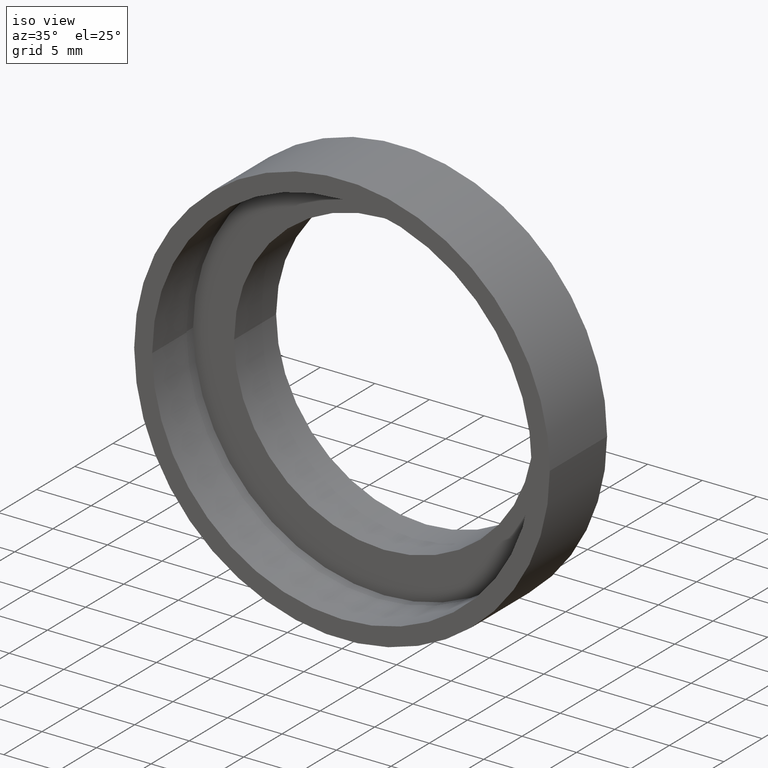
[diagram: clean part render]
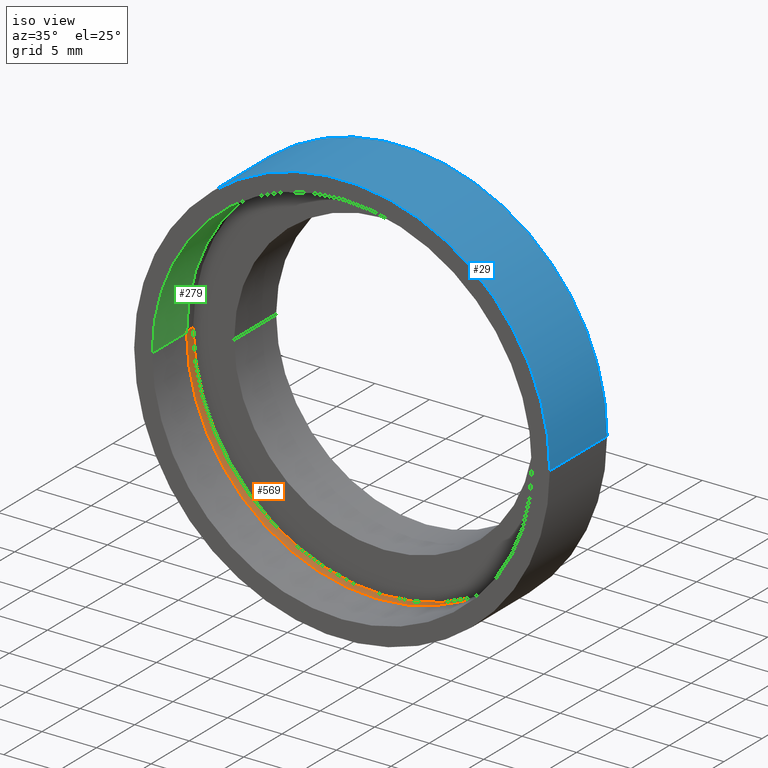
[diagram: same view with three faces highlighted in distinct colors, each labeled with its STEP entity id]
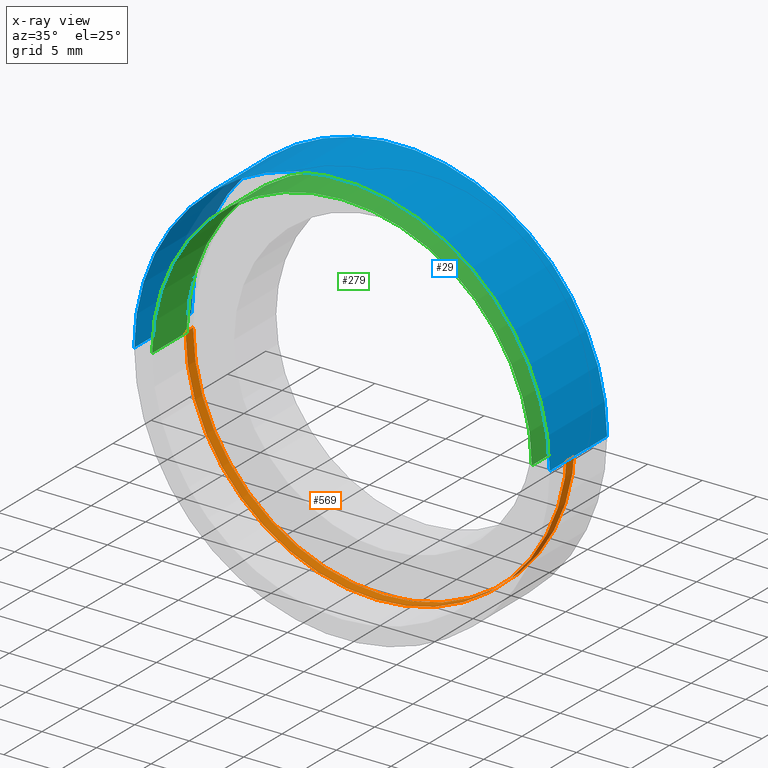
[diagram: x-ray of the same camera — body ghosted, the three highlighted faces saturated]
A machine part, iso view with three faces highlighted in distinct colors.
The next image is the same camera in x-ray (body ghosted, the three faces saturated) — at least one of them is partly hidden behind the body in this view.
Their STEP definitions:

[orange] entity #569 — the highlighted cylindrical surface (partial cylindrical patch) has radius 17.5 mm, axis along (-0, 1, -0).
#19 = DIRECTION ( 'NONE',  ( -1.224646799147351000E-016, 1.000000000000000000, -0.0000000000000000000 ) ) ;
#38 = EDGE_LOOP ( 'NONE', ( #225, #363, #254, #321 ) ) ;
#48 = CYLINDRICAL_SURFACE ( 'NONE', #552, 17.50000000000000000 ) ;
#59 = CIRCLE ( 'NONE', #134, 17.50000000000000000 ) ;
#73 = DIRECTION ( 'NONE',  ( -1.224646799147351000E-016, 1.000000000000000000, -0.0000000000000000000 ) ) ;
#82 = DIRECTION ( 'NONE',  ( -1.000000000000000000, -9.912705577010326800E-017, 0.0000000000000000000 ) ) ;
#84 = CARTESIAN_POINT ( 'NONE',  ( 17.50000000000000000, 5.500000000000000000, 2.143131898507868200E-015 ) ) ;
#115 = VECTOR ( 'NONE', #73, 1000.000000000000000 ) ;
#117 = DIRECTION ( 'NONE',  ( -1.000000000000000000, -1.982541115402065400E-016, 0.0000000000000000000 ) ) ;
#122 = VERTEX_POINT ( 'NONE', #286 ) ;
#126 = EDGE_CURVE ( 'NONE', #615, #372, #59, .T. ) ;
#134 = AXIS2_PLACEMENT_3D ( 'NONE', #524, #246, #433 ) ;
#161 = CARTESIAN_POINT ( 'NONE',  ( 0.0000000000000000000, 16.88601823708207700, 0.0000000000000000000 ) ) ;
#189 = CARTESIAN_POINT ( 'NONE',  ( -17.50000000000000000, 5.499999999999996400, 0.0000000000000000000 ) ) ;
#213 = AXIS2_PLACEMENT_3D ( 'NONE', #267, #606, #82 ) ;
#225 = ORIENTED_EDGE ( 'NONE', *, *, #599, .F. ) ;
#246 = DIRECTION ( 'NONE',  ( -1.224646799147351000E-016, 1.000000000000000000, -0.0000000000000000000 ) ) ;
#248 = CARTESIAN_POINT ( 'NONE',  ( 17.50000000000000000, 16.88601823708208000, 2.143131898507868200E-015 ) ) ;
#254 = ORIENTED_EDGE ( 'NONE', *, *, #126, .T. ) ;
#260 = EDGE_CURVE ( 'NONE', #122, #615, #443, .T. ) ;
#267 = CARTESIAN_POINT ( 'NONE',  ( 1.516849758822328100E-015, 4.499999999999999100, 0.0000000000000000000 ) ) ;
#286 = CARTESIAN_POINT ( 'NONE',  ( 17.50000000000000000, 4.500000000000000900, 2.143131898507868200E-015 ) ) ;
#321 = ORIENTED_EDGE ( 'NONE', *, *, #583, .F. ) ;
#363 = ORIENTED_EDGE ( 'NONE', *, *, #260, .T. ) ;
#372 = VERTEX_POINT ( 'NONE', #189 ) ;
#431 = CIRCLE ( 'NONE', #213, 17.50000000000000000 ) ;
#433 = DIRECTION ( 'NONE',  ( -1.000000000000000000, -9.912705577010326800E-017, 0.0000000000000000000 ) ) ;
#438 = CARTESIAN_POINT ( 'NONE',  ( -17.50000000000000000, 16.88601823708207300, 0.0000000000000000000 ) ) ;
#443 = LINE ( 'NONE', #248, #115 ) ;
#445 = VERTEX_POINT ( 'NONE', #624 ) ;
#453 = VECTOR ( 'NONE', #479, 1000.000000000000000 ) ;
#479 = DIRECTION ( 'NONE',  ( -1.224646799147351000E-016, 1.000000000000000000, -0.0000000000000000000 ) ) ;
#524 = CARTESIAN_POINT ( 'NONE',  ( 1.394385078907593000E-015, 5.499999999999998200, 0.0000000000000000000 ) ) ;
#526 = FACE_OUTER_BOUND ( 'NONE', #38, .T. ) ;
#547 = LINE ( 'NONE', #438, #453 ) ;
#552 = AXIS2_PLACEMENT_3D ( 'NONE', #161, #19, #117 ) ;
#569 = ADVANCED_FACE ( 'NONE', ( #526 ), #48, .F. ) ;
#583 = EDGE_CURVE ( 'NONE', #445, #372, #547, .T. ) ;
#599 = EDGE_CURVE ( 'NONE', #122, #445, #431, .T. ) ;
#606 = DIRECTION ( 'NONE',  ( -1.224646799147351000E-016, 1.000000000000000000, -0.0000000000000000000 ) ) ;
#615 = VERTEX_POINT ( 'NONE', #84 ) ;
#624 = CARTESIAN_POINT ( 'NONE',  ( -17.50000000000000000, 4.499999999999997300, 0.0000000000000000000 ) ) ;

[blue] entity #29 — the highlighted cylindrical surface (partial cylindrical patch) has radius 19.05 mm, axis along (-0, 1, -0).
#4 = EDGE_CURVE ( 'NONE', #586, #96, #182, .T. ) ;
#5 = DIRECTION ( 'NONE',  ( -1.000000000000000000, -1.821231995776175700E-016, 0.0000000000000000000 ) ) ;
#14 = ORIENTED_EDGE ( 'NONE', *, *, #567, .T. ) ;
#22 = CIRCLE ( 'NONE', #483, 19.04999999999999700 ) ;
#29 = ADVANCED_FACE ( 'NONE', ( #553 ), #296, .T. ) ;
#32 = ORIENTED_EDGE ( 'NONE', *, *, #473, .F. ) ;
#43 = EDGE_CURVE ( 'NONE', #586, #600, #22, .T. ) ;
#61 = VECTOR ( 'NONE', #347, 1000.000000000000000 ) ;
#96 = VERTEX_POINT ( 'NONE', #148 ) ;
#109 = CARTESIAN_POINT ( 'NONE',  ( 0.0000000000000000000, 16.88601823708207700, 0.0000000000000000000 ) ) ;
#135 = ORIENTED_EDGE ( 'NONE', *, *, #43, .T. ) ;
#148 = CARTESIAN_POINT ( 'NONE',  ( -19.05000000000000100, 7.499999999999995600, 0.0000000000000000000 ) ) ;
#152 = EDGE_LOOP ( 'NONE', ( #135, #14, #32, #612 ) ) ;
#172 = DIRECTION ( 'NONE',  ( -1.224646799147351000E-016, 1.000000000000000000, -0.0000000000000000000 ) ) ;
#182 = LINE ( 'NONE', #446, #405 ) ;
#235 = DIRECTION ( 'NONE',  ( -1.224646799147351000E-016, 1.000000000000000000, -0.0000000000000000000 ) ) ;
#243 = DIRECTION ( 'NONE',  ( -1.000000000000000000, -1.224646799147351000E-016, 0.0000000000000000000 ) ) ;
#256 = CARTESIAN_POINT ( 'NONE',  ( 19.04999999999999700, 16.88601823708208000, 2.332952152375707300E-015 ) ) ;
#294 = DIRECTION ( 'NONE',  ( -1.224646799147351000E-016, 1.000000000000000000, -0.0000000000000000000 ) ) ;
#296 = CYLINDRICAL_SURFACE ( 'NONE', #454, 19.04999999999999700 ) ;
#309 = CARTESIAN_POINT ( 'NONE',  ( 19.05000000000000100, 7.500000000000000900, 2.332952152375707600E-015 ) ) ;
#311 = CARTESIAN_POINT ( 'NONE',  ( 19.05000000000000100, -1.136494799577911100E-015, 2.332952152375707600E-015 ) ) ;
#336 = DIRECTION ( 'NONE',  ( -1.224646799147351000E-016, 1.000000000000000000, -0.0000000000000000000 ) ) ;
#347 = DIRECTION ( 'NONE',  ( -1.224646799147351000E-016, 1.000000000000000000, -0.0000000000000000000 ) ) ;
#383 = CIRCLE ( 'NONE', #458, 19.05000000000000100 ) ;
#385 = CARTESIAN_POINT ( 'NONE',  ( -19.04999999999999400, -5.802399104329317500E-015, 0.0000000000000000000 ) ) ;
#405 = VECTOR ( 'NONE', #172, 1000.000000000000000 ) ;
#409 = LINE ( 'NONE', #256, #61 ) ;
#446 = CARTESIAN_POINT ( 'NONE',  ( -19.04999999999999700, 16.88601823708207300, 0.0000000000000000000 ) ) ;
#454 = AXIS2_PLACEMENT_3D ( 'NONE', #109, #235, #5 ) ;
#458 = AXIS2_PLACEMENT_3D ( 'NONE', #466, #294, #529 ) ;
#466 = CARTESIAN_POINT ( 'NONE',  ( 1.149455719078122700E-015, 7.499999999999998200, 0.0000000000000000000 ) ) ;
#471 = CARTESIAN_POINT ( 'NONE',  ( 2.067940818438636500E-015, -3.469446951953614200E-015, 0.0000000000000000000 ) ) ;
#473 = EDGE_CURVE ( 'NONE', #96, #621, #383, .T. ) ;
#483 = AXIS2_PLACEMENT_3D ( 'NONE', #471, #336, #243 ) ;
#529 = DIRECTION ( 'NONE',  ( -1.000000000000000000, -1.365923996832131600E-016, 0.0000000000000000000 ) ) ;
#553 = FACE_OUTER_BOUND ( 'NONE', #152, .T. ) ;
#567 = EDGE_CURVE ( 'NONE', #600, #621, #409, .T. ) ;
#586 = VERTEX_POINT ( 'NONE', #385 ) ;
#600 = VERTEX_POINT ( 'NONE', #311 ) ;
#612 = ORIENTED_EDGE ( 'NONE', *, *, #4, .F. ) ;
#621 = VERTEX_POINT ( 'NONE', #309 ) ;

[green] entity #279 — the highlighted cylindrical surface (partial cylindrical patch) has radius 17.4 mm, axis along (-0, 1, -0).
#3 = CARTESIAN_POINT ( 'NONE',  ( -17.39999999999999500, -5.600332382470004300E-015, 0.0000000000000000000 ) ) ;
#10 = DIRECTION ( 'NONE',  ( -1.224646799147351000E-016, 1.000000000000000000, -0.0000000000000000000 ) ) ;
#69 = CIRCLE ( 'NONE', #397, 17.40000000000000200 ) ;
#99 = AXIS2_PLACEMENT_3D ( 'NONE', #597, #253, #537 ) ;
#123 = LINE ( 'NONE', #176, #250 ) ;
#131 = VERTEX_POINT ( 'NONE', #3 ) ;
#145 = CIRCLE ( 'NONE', #194, 17.39999999999999900 ) ;
#166 = FACE_OUTER_BOUND ( 'NONE', #271, .T. ) ;
#176 = CARTESIAN_POINT ( 'NONE',  ( 17.39999999999999900, 16.88601823708208000, 2.130885430516394500E-015 ) ) ;
#194 = AXIS2_PLACEMENT_3D ( 'NONE', #198, #10, #335 ) ;
#195 = CARTESIAN_POINT ( 'NONE',  ( 1.516849758822328100E-015, 4.499999999999999100, 0.0000000000000000000 ) ) ;
#198 = CARTESIAN_POINT ( 'NONE',  ( 2.067940818438636500E-015, -3.469446951953614200E-015, 0.0000000000000000000 ) ) ;
#244 = CARTESIAN_POINT ( 'NONE',  ( -17.40000000000000200, 4.499999999999997300, 0.0000000000000000000 ) ) ;
#245 = VERTEX_POINT ( 'NONE', #251 ) ;
#250 = VECTOR ( 'NONE', #551, 1000.000000000000000 ) ;
#251 = CARTESIAN_POINT ( 'NONE',  ( 17.40000000000000200, 4.500000000000000900, 2.130885430516394900E-015 ) ) ;
#253 = DIRECTION ( 'NONE',  ( -1.224646799147351000E-016, 1.000000000000000000, -0.0000000000000000000 ) ) ;
#271 = EDGE_LOOP ( 'NONE', ( #305, #284, #317, #354 ) ) ;
#279 = ADVANCED_FACE ( 'NONE', ( #166 ), #314, .F. ) ;
#284 = ORIENTED_EDGE ( 'NONE', *, *, #545, .F. ) ;
#285 = DIRECTION ( 'NONE',  ( -1.000000000000000000, -9.969675149291993300E-017, 0.0000000000000000000 ) ) ;
#305 = ORIENTED_EDGE ( 'NONE', *, *, #609, .F. ) ;
#314 = CYLINDRICAL_SURFACE ( 'NONE', #99, 17.39999999999999900 ) ;
#317 = ORIENTED_EDGE ( 'NONE', *, *, #498, .T. ) ;
#327 = CARTESIAN_POINT ( 'NONE',  ( 17.40000000000000200, -1.338561521437223600E-015, 2.130885430516394900E-015 ) ) ;
#335 = DIRECTION ( 'NONE',  ( -1.000000000000000000, -1.224646799147351000E-016, 0.0000000000000000000 ) ) ;
#354 = ORIENTED_EDGE ( 'NONE', *, *, #448, .T. ) ;
#360 = VERTEX_POINT ( 'NONE', #327 ) ;
#376 = CARTESIAN_POINT ( 'NONE',  ( -17.39999999999999900, 16.88601823708207300, 0.0000000000000000000 ) ) ;
#397 = AXIS2_PLACEMENT_3D ( 'NONE', #195, #501, #285 ) ;
#448 = EDGE_CURVE ( 'NONE', #481, #245, #69, .T. ) ;
#478 = VECTOR ( 'NONE', #525, 1000.000000000000000 ) ;
#481 = VERTEX_POINT ( 'NONE', #244 ) ;
#498 = EDGE_CURVE ( 'NONE', #131, #481, #570, .T. ) ;
#501 = DIRECTION ( 'NONE',  ( -1.224646799147351000E-016, 1.000000000000000000, -0.0000000000000000000 ) ) ;
#525 = DIRECTION ( 'NONE',  ( -1.224646799147351000E-016, 1.000000000000000000, -0.0000000000000000000 ) ) ;
#537 = DIRECTION ( 'NONE',  ( -1.000000000000000000, -1.993935029858399100E-016, 0.0000000000000000000 ) ) ;
#545 = EDGE_CURVE ( 'NONE', #131, #360, #145, .T. ) ;
#551 = DIRECTION ( 'NONE',  ( -1.224646799147351000E-016, 1.000000000000000000, -0.0000000000000000000 ) ) ;
#570 = LINE ( 'NONE', #376, #478 ) ;
#597 = CARTESIAN_POINT ( 'NONE',  ( 0.0000000000000000000, 16.88601823708207700, 0.0000000000000000000 ) ) ;
#609 = EDGE_CURVE ( 'NONE', #360, #245, #123, .T. ) ;